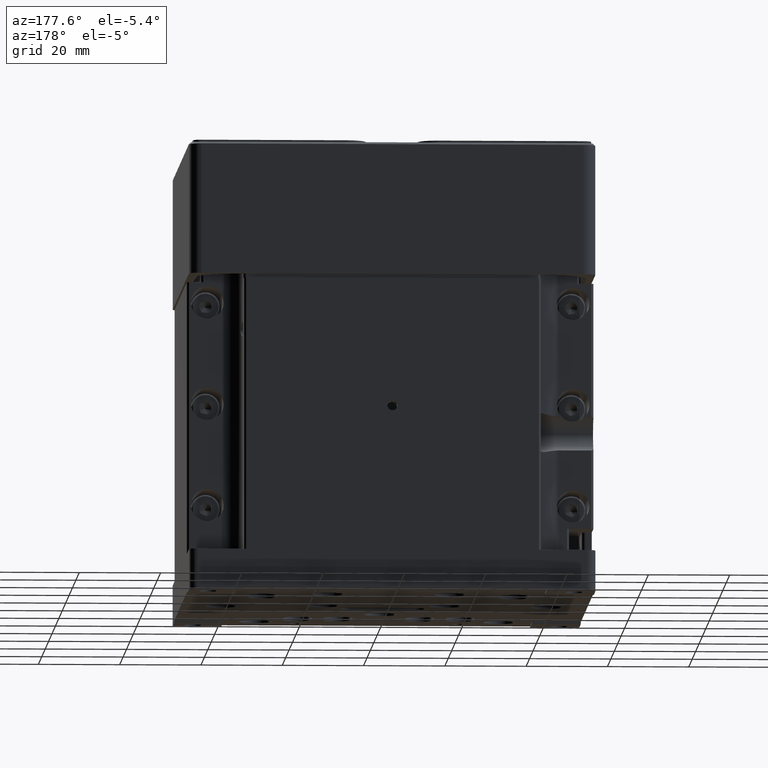
[diagram: clean part render]
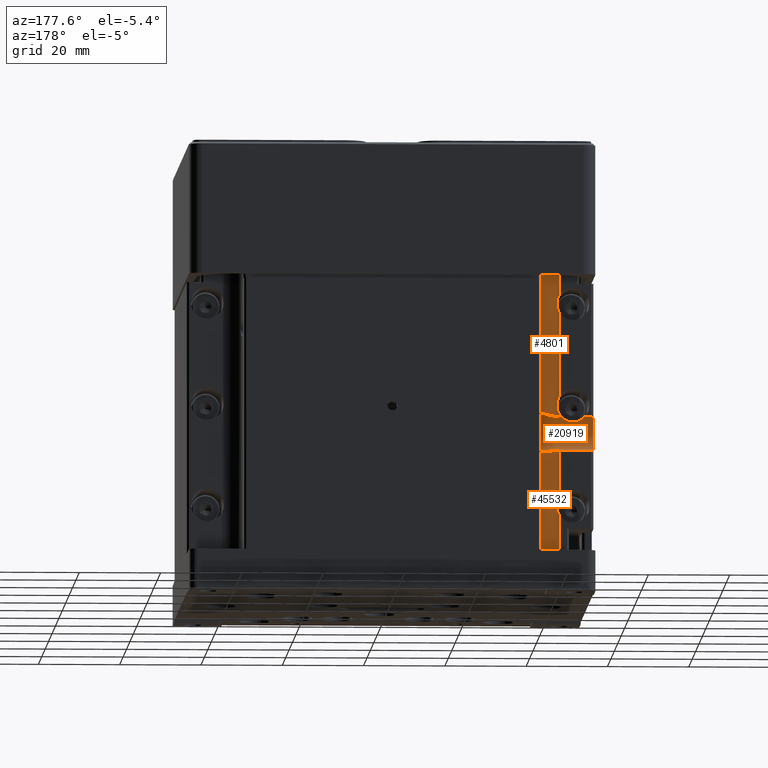
[diagram: same view with one multi-face feature highlighted, each face labeled with its STEP entity id]
A machine part, auxiliary view. The highlighted faces form ONE feature: a constant-radius fillet chain: 3 tangent blend faces with common blend radius 4.91667 mm. The faces share edges in the B-rep.
Their STEP definitions:
[1] entity #4801 (Cylinder):
#235 = ORIENTED_EDGE ( 'NONE', *, *, #21583, .F. ) ;
#711 = CARTESIAN_POINT ( 'NONE',  ( -41.50000000000000711, 36.50000000000000711, 38.93649167310373826 ) ) ;
#1902 = CARTESIAN_POINT ( 'NONE',  ( -40.67202831915937367, 36.55201173390535985, 75.78764984284978823 ) ) ;
#2355 = CARTESIAN_POINT ( 'NONE',  ( -36.62292678285738390, 40.37083705140393164, 75.52820903676904152 ) ) ;
#2496 = CARTESIAN_POINT ( 'NONE',  ( -38.44061461632058041, 37.53991129457630649, 34.59494067615605672 ) ) ;
#2549 = CARTESIAN_POINT ( 'NONE',  ( -41.50000000000000711, 36.50000000000000711, 60.06350832689626884 ) ) ;
#2952 = EDGE_CURVE ( 'NONE', #17466, #20831, #41573, .T. ) ;
#3249 = VERTEX_POINT ( 'NONE', #24686 ) ;
#4093 = B_SPLINE_CURVE_WITH_KNOTS ( 'NONE', 3,
 ( #28813, #21227, #46700, #32745, #47173, #13631, #13143, #5578, #28563, #1902, #47677, #39823 ),
 .UNSPECIFIED., .F., .F.,
 ( 4, 2, 2, 2, 2, 4 ),
 ( 0.000000000000000000, 0.001239336174084026878, 0.001859004261126032511, 0.002478672348168038143, 0.003718008522252048541, 0.004957344696336058940 ),
 .UNSPECIFIED. ) ;
#4516 = CARTESIAN_POINT ( 'NONE',  ( -41.50000000000000711, 36.50000000000000711, 38.93649167310373826 ) ) ;
#4801 = ADVANCED_FACE ( 'NONE', ( #15263 ), #26293, .F. ) ;
#4960 = EDGE_CURVE ( 'NONE', #37287, #17466, #5709, .T. ) ;
#5213 = CARTESIAN_POINT ( 'NONE',  ( -39.87698085092112166, 36.75300791791184452, 34.31127230506380954 ) ) ;
#5578 = CARTESIAN_POINT ( 'NONE',  ( -39.48770506986645046, 36.90466473817446769, 75.61823906872515977 ) ) ;
#5709 = LINE ( 'NONE', #16969, #12120 ) ;
#6007 = CARTESIAN_POINT ( 'NONE',  ( -41.50000000000000711, 36.50000000000000711, 34.18330013267034673 ) ) ;
#6835 = CARTESIAN_POINT ( 'NONE',  ( -36.62292678285738390, 40.37083705140393874, 34.47179096323093717 ) ) ;
#8227 = ORIENTED_EDGE ( 'NONE', *, *, #18385, .F. ) ;
#8779 = ORIENTED_EDGE ( 'NONE', *, *, #31743, .T. ) ;
#9420 = VECTOR ( 'NONE', #33995, 1000.000000000000000 ) ;
#9509 = CARTESIAN_POINT ( 'NONE',  ( -36.57435532177204607, 40.61049658699277387, 34.37788176978834542 ) ) ;
#9641 = CARTESIAN_POINT ( 'NONE',  ( -40.98950203047739649, 36.52615249198769476, 62.00000615618463229 ) ) ;
#9763 = CARTESIAN_POINT ( 'NONE',  ( -36.84359317990738703, 39.66064117488975427, 34.66781516531636242 ) ) ;
#9800 = VERTEX_POINT ( 'NONE', #10646 ) ;
#10625 = CARTESIAN_POINT ( 'NONE',  ( -41.05300024986247820, 36.51997521928483792, 62.67063694956938491 ) ) ;
#10646 = CARTESIAN_POINT ( 'NONE',  ( -41.50000000000000000, 36.50000000000000711, 63.93649167310372405 ) ) ;
#11000 = CARTESIAN_POINT ( 'NONE',  ( -40.98950202179891278, 36.52615248800824332, 37.00000615618349542 ) ) ;
#11094 = EDGE_CURVE ( 'NONE', #31911, #36598, #4093, .T. ) ;
#11127 = DIRECTION ( 'NONE',  ( 1.000000000000000000, 0.000000000000000000, 0.000000000000000000 ) ) ;
#11830 = CARTESIAN_POINT ( 'NONE',  ( -41.50000000000000000, 41.50000000000000000, 137.9435699807652043 ) ) ;
#11946 = CARTESIAN_POINT ( 'NONE',  ( -41.50000000000000711, 36.50000000000000711, 35.06350832689627595 ) ) ;
#12120 = VECTOR ( 'NONE', #20633, 1000.000000000000000 ) ;
#12289 = VECTOR ( 'NONE', #44359, 1000.000000000000000 ) ;
#13143 = CARTESIAN_POINT ( 'NONE',  ( -38.94896344837450641, 37.19490746024256822, 75.51058634511852574 ) ) ;
#13599 = CARTESIAN_POINT ( 'NONE',  ( -37.05549353626781794, 39.19528143679995935, 75.26507759208209336 ) ) ;
#13631 = CARTESIAN_POINT ( 'NONE',  ( -38.77554119240214447, 37.30244527297164581, 75.47425367429354992 ) ) ;
#13809 = CARTESIAN_POINT ( 'NONE',  ( -41.21152686127313558, 36.50761424987427262, 60.67308767650152390 ) ) ;
#14031 = DIRECTION ( 'NONE',  ( 0.000000000000000000, -0.000000000000000000, -1.000000000000000000 ) ) ;
#14036 = CARTESIAN_POINT ( 'NONE',  ( -41.21152968157476693, 36.50761411240627297, 63.32691743491508873 ) ) ;
#15139 = CARTESIAN_POINT ( 'NONE',  ( -41.08520046601392295, 36.51705665253342659, 36.16175727382861282 ) ) ;
#15263 = FACE_OUTER_BOUND ( 'NONE', #17199, .T. ) ;
#15745 = DIRECTION ( 'NONE',  ( -0.000000000000000000, 0.000000000000000000, 1.000000000000000000 ) ) ;
#16448 = ORIENTED_EDGE ( 'NONE', *, *, #4960, .F. ) ;
#16969 = CARTESIAN_POINT ( 'NONE',  ( -41.50000000000000711, 36.50000000000000711, 137.9435699807652043 ) ) ;
#17199 = EDGE_LOOP ( 'NONE', ( #32460, #40188, #8779, #31008, #235, #37851, #16448, #31735, #8227, #39293 ) ) ;
#17279 = CARTESIAN_POINT ( 'NONE',  ( -36.75775879399046175, 39.89625423652084635, 75.38371053861482096 ) ) ;
#17420 = CARTESIAN_POINT ( 'NONE',  ( -38.77554119240213026, 37.30244527297163870, 34.52574632570644297 ) ) ;
#17466 = VERTEX_POINT ( 'NONE', #4516 ) ;
#17961 = CARTESIAN_POINT ( 'NONE',  ( -41.08520046601392295, 36.51705665253343369, 61.16175727382860572 ) ) ;
#18385 = EDGE_CURVE ( 'NONE', #36598, #9800, #19540, .T. ) ;
#19093 = LINE ( 'NONE', #29411, #12289 ) ;
#19540 = LINE ( 'NONE', #34479, #9420 ) ;
#20135 = CARTESIAN_POINT ( 'NONE',  ( -40.67202831915938788, 36.55201173390535274, 34.21235015715019756 ) ) ;
#20633 = DIRECTION ( 'NONE',  ( 0.000000000000000000, -0.000000000000000000, -1.000000000000000000 ) ) ;
#20831 = VERTEX_POINT ( 'NONE', #35239 ) ;
#21098 = CARTESIAN_POINT ( 'NONE',  ( -38.27867324400574489, 37.67046390697057490, 34.62786517102849615 ) ) ;
#21123 = B_SPLINE_CURVE_WITH_KNOTS ( 'NONE', 3,
 ( #39501, #47593, #14036, #28227, #10625, #28949, #9641, #31922, #35835, #17961, #13809, #47818, #2549 ),
 .UNSPECIFIED., .F., .F.,
 ( 4, 2, 2, 1, 2, 2, 4 ),
 ( 0.000000000000000000, 0.001006051888025562800, 0.001509077832038346802, 0.002012103776051130805, 0.002515129720063914373, 0.003018155664076698375, 0.004024207552102266813 ),
 .UNSPECIFIED. ) ;
#21227 = CARTESIAN_POINT ( 'NONE',  ( -37.55528511130841451, 38.39906626694056513, 75.25000000000001421 ) ) ;
#21583 = EDGE_CURVE ( 'NONE', #20831, #24025, #40473, .T. ) ;
#21584 = CARTESIAN_POINT ( 'NONE',  ( -37.32417672787748586, 38.75000000000000711, 34.74999999999998579 ) ) ;
#21760 = CARTESIAN_POINT ( 'NONE',  ( -36.75775879399046175, 39.89625423652087477, 34.61628946138514351 ) ) ;
#21898 = CARTESIAN_POINT ( 'NONE',  ( -41.50000000000000711, 36.50000000000000711, 60.06350832689626884 ) ) ;
#22022 = CARTESIAN_POINT ( 'NONE',  ( -41.01049860512722489, 36.52397307306545571, 37.33532009486668102 ) ) ;
#22271 = CARTESIAN_POINT ( 'NONE',  ( -41.08520553262001584, 36.51705623715808713, 37.83826522434053174 ) ) ;
#22358 = CARTESIAN_POINT ( 'NONE',  ( -36.50000000000000711, 41.50000000000000000, 76.12701665379259452 ) ) ;
#22737 = B_SPLINE_CURVE_WITH_KNOTS ( 'NONE', 3,
 ( #36018, #28411, #39698, #21098, #2496, #17420, #32342, #42399, #5213, #20135, #27686, #35284 ),
 .UNSPECIFIED., .F., .F.,
 ( 4, 2, 2, 2, 2, 4 ),
 ( 0.003074230647270199089, 0.004317529793534599647, 0.004939179366666791686, 0.005560828939798983725, 0.006804128086063378211, 0.008047427232327772698 ),
 .UNSPECIFIED. ) ;
#22740 = CARTESIAN_POINT ( 'NONE',  ( -41.05299548330542336, 36.51997565466324858, 36.32939260183512431 ) ) ;
#24025 = VERTEX_POINT ( 'NONE', #6007 ) ;
#24686 = CARTESIAN_POINT ( 'NONE',  ( -36.50000000000000711, 41.50000000000000000, 76.12701665379259452 ) ) ;
#24718 = CARTESIAN_POINT ( 'NONE',  ( -37.05549353626781794, 39.19528143679995935, 34.73492240791792085 ) ) ;
#25925 = CARTESIAN_POINT ( 'NONE',  ( -41.21152686127313558, 36.50761424987427262, 35.67308767650153101 ) ) ;
#26164 = CARTESIAN_POINT ( 'NONE',  ( -41.33529920689155546, 36.50000000000000711, 38.63881273965618135 ) ) ;
#26252 = CARTESIAN_POINT ( 'NONE',  ( -36.51338564563180000, 41.06771641401081752, 75.84602756813650615 ) ) ;
#26293 = CYLINDRICAL_SURFACE ( 'NONE', #37102, 4.999999999999997335 ) ;
#27253 = B_SPLINE_CURVE_WITH_KNOTS ( 'NONE', 3,
 ( #22358, #29904, #26252, #35883, #2355, #17279, #32203, #13599, #28529, #47625 ),
 .UNSPECIFIED., .F., .F.,
 ( 4, 2, 2, 2, 4 ),
 ( -0.003064431645503165515, -0.002298323734127374028, -0.001532215822751582758, -0.0007661079113757914873, 0.000000000000000000 ),
 .UNSPECIFIED. ) ;
#27686 = CARTESIAN_POINT ( 'NONE',  ( -41.08006156372315587, 36.49999999999998579, 34.18330013267040357 ) ) ;
#28227 = CARTESIAN_POINT ( 'NONE',  ( -41.08520553261998742, 36.51705623715808002, 62.83826522434051043 ) ) ;
#28411 = CARTESIAN_POINT ( 'NONE',  ( -37.55528511130840030, 38.39906626694055092, 34.74999999999997158 ) ) ;
#28502 = EDGE_CURVE ( 'NONE', #3249, #44226, #19093, .T. ) ;
#28529 = CARTESIAN_POINT ( 'NONE',  ( -37.18131479530897820, 38.96693315735272023, 75.25000000000001421 ) ) ;
#28563 = CARTESIAN_POINT ( 'NONE',  ( -39.87698085092111455, 36.75300791791186583, 75.68872769493616204 ) ) ;
#28813 = CARTESIAN_POINT ( 'NONE',  ( -37.32417672787748586, 38.75000000000000711, 75.25000000000001421 ) ) ;
#28949 = CARTESIAN_POINT ( 'NONE',  ( -41.01049860512721779, 36.52397307306544860, 62.33532009486668102 ) ) ;
#29411 = CARTESIAN_POINT ( 'NONE',  ( -36.50000000000000711, 41.50000000000000000, 137.9435699807652043 ) ) ;
#29904 = CARTESIAN_POINT ( 'NONE',  ( -36.49999999999999289, 41.28831086420516527, 75.97670742924975684 ) ) ;
#30037 = CARTESIAN_POINT ( 'NONE',  ( -37.32417672787748586, 38.75000000000000711, 75.25000000000001421 ) ) ;
#31008 = ORIENTED_EDGE ( 'NONE', *, *, #46598, .T. ) ;
#31289 = VERTEX_POINT ( 'NONE', #21584 ) ;
#31735 = ORIENTED_EDGE ( 'NONE', *, *, #33922, .F. ) ;
#31743 = EDGE_CURVE ( 'NONE', #44226, #31289, #32866, .T. ) ;
#31911 = VERTEX_POINT ( 'NONE', #30037 ) ;
#31922 = CARTESIAN_POINT ( 'NONE',  ( -41.01049734262520019, 36.52397320480334031, 61.66469792115140081 ) ) ;
#31989 = CARTESIAN_POINT ( 'NONE',  ( -41.50000000000000000, 36.50000000000000711, 75.81669986732964617 ) ) ;
#32203 = CARTESIAN_POINT ( 'NONE',  ( -36.84359317990738703, 39.66064117488975427, 75.33218483468364468 ) ) ;
#32342 = CARTESIAN_POINT ( 'NONE',  ( -38.94896344837451352, 37.19490746024256111, 34.48941365488150979 ) ) ;
#32460 = ORIENTED_EDGE ( 'NONE', *, *, #41530, .F. ) ;
#32745 = CARTESIAN_POINT ( 'NONE',  ( -38.27867324400578752, 37.67046390697059621, 75.37213482897151096 ) ) ;
#32866 = B_SPLINE_CURVE_WITH_KNOTS ( 'NONE', 3,
 ( #43294, #46962, #39858, #9509, #6835, #21760, #9763, #24718, #39633, #43559 ),
 .UNSPECIFIED., .F., .F.,
 ( 4, 2, 2, 2, 4 ),
 ( 0.000000000000000000, 0.0007685576618175497723, 0.001537115323635099545, 0.002305672985452649100, 0.003074230647270199089 ),
 .UNSPECIFIED. ) ;
#33922 = EDGE_CURVE ( 'NONE', #9800, #37287, #21123, .T. ) ;
#33988 = CARTESIAN_POINT ( 'NONE',  ( -41.05300024986249241, 36.51997521928485213, 37.67063694956941333 ) ) ;
#33995 = DIRECTION ( 'NONE',  ( 0.000000000000000000, -0.000000000000000000, -1.000000000000000000 ) ) ;
#34479 = CARTESIAN_POINT ( 'NONE',  ( -41.50000000000000000, 36.50000000000000711, 137.9435699807652043 ) ) ;
#34957 = VECTOR ( 'NONE', #14031, 1000.000000000000000 ) ;
#35239 = CARTESIAN_POINT ( 'NONE',  ( -41.50000000000000711, 36.50000000000000711, 35.06350832689627595 ) ) ;
#35284 = CARTESIAN_POINT ( 'NONE',  ( -41.50000000000000711, 36.50000000000000711, 34.18330013267034673 ) ) ;
#35835 = CARTESIAN_POINT ( 'NONE',  ( -41.05299548330543047, 36.51997565466325568, 61.32939260183512431 ) ) ;
#35883 = CARTESIAN_POINT ( 'NONE',  ( -36.57435532177204607, 40.61049658699278808, 75.62211823021165458 ) ) ;
#36018 = CARTESIAN_POINT ( 'NONE',  ( -37.32417672787748586, 38.75000000000000711, 34.74999999999998579 ) ) ;
#36598 = VERTEX_POINT ( 'NONE', #31989 ) ;
#37102 = AXIS2_PLACEMENT_3D ( 'NONE', #11830, #15745, #11127 ) ;
#37193 = CARTESIAN_POINT ( 'NONE',  ( -41.21152968157478114, 36.50761411240627297, 38.32691743491510294 ) ) ;
#37287 = VERTEX_POINT ( 'NONE', #21898 ) ;
#37427 = CARTESIAN_POINT ( 'NONE',  ( -41.01049734262520730, 36.52397320480335452, 36.66469792115141502 ) ) ;
#37851 = ORIENTED_EDGE ( 'NONE', *, *, #2952, .F. ) ;
#39293 = ORIENTED_EDGE ( 'NONE', *, *, #11094, .F. ) ;
#39501 = CARTESIAN_POINT ( 'NONE',  ( -41.50000000000000000, 36.50000000000000711, 63.93649167310372405 ) ) ;
#39633 = CARTESIAN_POINT ( 'NONE',  ( -37.18131479530897820, 38.96693315735272023, 34.74999999999998579 ) ) ;
#39698 = CARTESIAN_POINT ( 'NONE',  ( -37.82326120513859280, 38.08667861736431348, 34.71196791296659967 ) ) ;
#39823 = CARTESIAN_POINT ( 'NONE',  ( -41.50000000000000000, 36.50000000000000711, 75.81669986732964617 ) ) ;
#39858 = CARTESIAN_POINT ( 'NONE',  ( -36.51338564563180000, 41.06771641401081041, 34.15397243186349385 ) ) ;
#40188 = ORIENTED_EDGE ( 'NONE', *, *, #28502, .T. ) ;
#40276 = CARTESIAN_POINT ( 'NONE',  ( -36.50000000000000711, 41.50000000000000000, 33.87298334620740548 ) ) ;
#40473 = LINE ( 'NONE', #47814, #34957 ) ;
#40849 = CARTESIAN_POINT ( 'NONE',  ( -41.33529922549250557, 36.50000000000001421, 35.36118722672461701 ) ) ;
#41530 = EDGE_CURVE ( 'NONE', #3249, #31911, #27253, .T. ) ;
#41573 = B_SPLINE_CURVE_WITH_KNOTS ( 'NONE', 3,
 ( #711, #26164, #37193, #22271, #33988, #22022, #11000, #37427, #22740, #15139, #25925, #40849, #11946 ),
 .UNSPECIFIED., .F., .F.,
 ( 4, 2, 2, 1, 2, 2, 4 ),
 ( 6.938893903907228378E-18, 0.001006051888025582099, 0.001509077832038361764, 0.002012103776051142080, 0.002515129720063921746, 0.003018155664076701411, 0.004024207552102261609 ),
 .UNSPECIFIED. ) ;
#42399 = CARTESIAN_POINT ( 'NONE',  ( -39.48770506986642914, 36.90466473817446058, 34.38176093127486865 ) ) ;
#43294 = CARTESIAN_POINT ( 'NONE',  ( -36.50000000000000711, 41.50000000000000000, 33.87298334620740548 ) ) ;
#43559 = CARTESIAN_POINT ( 'NONE',  ( -37.32417672787748586, 38.75000000000000711, 34.74999999999998579 ) ) ;
#44226 = VERTEX_POINT ( 'NONE', #40276 ) ;
#44359 = DIRECTION ( 'NONE',  ( 0.000000000000000000, 0.000000000000000000, -1.000000000000000000 ) ) ;
#46598 = EDGE_CURVE ( 'NONE', #31289, #24025, #22737, .T. ) ;
#46700 = CARTESIAN_POINT ( 'NONE',  ( -37.82326120513859280, 38.08667861736432059, 75.28803208703341454 ) ) ;
#46962 = CARTESIAN_POINT ( 'NONE',  ( -36.49999999999999289, 41.28831086420517238, 34.02329257075023605 ) ) ;
#47173 = CARTESIAN_POINT ( 'NONE',  ( -38.44061461632058041, 37.53991129457630649, 75.40505932384392906 ) ) ;
#47593 = CARTESIAN_POINT ( 'NONE',  ( -41.33529920689155546, 36.50000000000002132, 63.63881273965618846 ) ) ;
#47625 = CARTESIAN_POINT ( 'NONE',  ( -37.32417672787748586, 38.75000000000000711, 75.25000000000001421 ) ) ;
#47677 = CARTESIAN_POINT ( 'NONE',  ( -41.08006156372317719, 36.50000000000000711, 75.81669986732960353 ) ) ;
#47814 = CARTESIAN_POINT ( 'NONE',  ( -41.50000000000000711, 36.50000000000000711, 137.9435699807652043 ) ) ;
#47818 = CARTESIAN_POINT ( 'NONE',  ( -41.33529922549251268, 36.50000000000002132, 60.36118722672462411 ) ) ;
[2] entity #20919 (Cylinder):
#375 = CARTESIAN_POINT ( 'NONE',  ( -40.67202831915938788, 36.55201173390535985, 25.78764984284977757 ) ) ;
#842 = CARTESIAN_POINT ( 'NONE',  ( -42.15989404116938033, 36.50000000000000711, 34.18330013267036094 ) ) ;
#1064 = VERTEX_POINT ( 'NONE', #37253 ) ;
#1402 = B_SPLINE_CURVE_WITH_KNOTS ( 'NONE', 3,
 ( #22653, #37564, #4041, #30689, #26541, #12103, #15296, #18958, #33900, #375, #30225, #41482 ),
 .UNSPECIFIED., .F., .F.,
 ( 4, 2, 2, 2, 2, 4 ),
 ( 0.000000000000000000, 0.001239336174084019939, 0.001859004261126022319, 0.002478672348168024699, 0.003718008522252041169, 0.004957344696336058072 ),
 .UNSPECIFIED. ) ;
#2203 = CARTESIAN_POINT ( 'NONE',  ( -47.84010595883061967, 36.50000000000000711, 34.18330013267036094 ) ) ;
#2398 = CARTESIAN_POINT ( 'NONE',  ( -14.34999999999999432, 38.75000000000000711, 25.25000000000000000 ) ) ;
#2496 = CARTESIAN_POINT ( 'NONE',  ( -38.44061461632058041, 37.53991129457630649, 34.59494067615605672 ) ) ;
#3416 = EDGE_CURVE ( 'NONE', #44821, #27019, #37215, .T. ) ;
#3931 = CARTESIAN_POINT ( 'NONE',  ( -43.05856004215316801, 35.53753030059665008, 33.50036672747608435 ) ) ;
#4041 = CARTESIAN_POINT ( 'NONE',  ( -37.82326120513858569, 38.08667861736431348, 25.28803208703338612 ) ) ;
#4577 = CARTESIAN_POINT ( 'NONE',  ( -49.50000000000001421, 36.50000000000000711, 25.81669986732964261 ) ) ;
#5213 = CARTESIAN_POINT ( 'NONE',  ( -39.87698085092112166, 36.75300791791184452, 34.31127230506380954 ) ) ;
#5483 = VERTEX_POINT ( 'NONE', #27172 ) ;
#5608 = LINE ( 'NONE', #8556, #18535 ) ;
#5639 = FACE_OUTER_BOUND ( 'NONE', #46721, .T. ) ;
#5868 = CARTESIAN_POINT ( 'NONE',  ( -46.81938151439235440, 35.46828571331318614, 33.43506973195798793 ) ) ;
#6007 = CARTESIAN_POINT ( 'NONE',  ( -41.50000000000000711, 36.50000000000000711, 34.18330013267034673 ) ) ;
#7717 = ORIENTED_EDGE ( 'NONE', *, *, #34481, .F. ) ;
#8556 = CARTESIAN_POINT ( 'NONE',  ( -23.06497115745560578, 38.75000000000000711, 34.74999999999998579 ) ) ;
#8950 = CARTESIAN_POINT ( 'NONE',  ( -49.83985581056104763, 36.16014418943899500, 26.01330676103292916 ) ) ;
#9924 = CIRCLE ( 'NONE', #41188, 4.749999999999990230 ) ;
#9978 = VERTEX_POINT ( 'NONE', #18922 ) ;
#10026 = CARTESIAN_POINT ( 'NONE',  ( -47.26474722385077598, 35.77008186083643437, 33.70077476463089283 ) ) ;
#10256 = CARTESIAN_POINT ( 'NONE',  ( -46.57048341305441852, 35.35058476758797497, 33.31863357430483319 ) ) ;
#10383 = CARTESIAN_POINT ( 'NONE',  ( -49.50000000000001421, 36.50000000000000711, 34.18330013267038225 ) ) ;
#10808 = CARTESIAN_POINT ( 'NONE',  ( -42.83722536825150939, 35.68791519070572349, 33.63265266948210552 ) ) ;
#11256 = EDGE_CURVE ( 'NONE', #44821, #11606, #29177, .T. ) ;
#11606 = VERTEX_POINT ( 'NONE', #46640 ) ;
#12103 = CARTESIAN_POINT ( 'NONE',  ( -38.77554119240213026, 37.30244527297165291, 25.47425367429353571 ) ) ;
#12418 = ORIENTED_EDGE ( 'NONE', *, *, #31664, .F. ) ;
#14712 = CARTESIAN_POINT ( 'NONE',  ( -42.28834449059874601, 36.25919466518423917, 34.05378229121687639 ) ) ;
#15287 = ORIENTED_EDGE ( 'NONE', *, *, #46598, .F. ) ;
#15296 = CARTESIAN_POINT ( 'NONE',  ( -38.94896344837451352, 37.19490746024256111, 25.51058634511848666 ) ) ;
#16212 = ORIENTED_EDGE ( 'NONE', *, *, #11256, .T. ) ;
#16351 = LINE ( 'NONE', #31281, #45935 ) ;
#16398 = CYLINDRICAL_SURFACE ( 'NONE', #30243, 4.749999999999990230 ) ;
#16425 = VECTOR ( 'NONE', #36955, 1000.000000000000000 ) ;
#17355 = CARTESIAN_POINT ( 'NONE',  ( -46.44070870414029883, 35.30013814700290453, 33.26572786226159195 ) ) ;
#17420 = CARTESIAN_POINT ( 'NONE',  ( -38.77554119240213026, 37.30244527297163870, 34.52574632570644297 ) ) ;
#17425 = CARTESIAN_POINT ( 'NONE',  ( -23.06497115745560578, 38.75000000000000711, 25.25000000000000000 ) ) ;
#18535 = VECTOR ( 'NONE', #23498, 1000.000000000000000 ) ;
#18838 = DIRECTION ( 'NONE',  ( -1.000000000000000000, -0.000000000000000000, -0.000000000000000000 ) ) ;
#18922 = CARTESIAN_POINT ( 'NONE',  ( -14.34999999999999432, 38.75000000000000711, 34.74999999999998579 ) ) ;
#18937 = CARTESIAN_POINT ( 'NONE',  ( -41.50000000000000000, 36.50000000000000711, 25.81669986732963551 ) ) ;
#18958 = CARTESIAN_POINT ( 'NONE',  ( -39.48770506986645046, 36.90466473817446769, 25.61823906872511714 ) ) ;
#18961 = CARTESIAN_POINT ( 'NONE',  ( -23.06497115745560578, 36.50000000000000711, 34.18330013267036094 ) ) ;
#19449 = DIRECTION ( 'NONE',  ( -1.000000000000000000, -0.000000000000000000, -0.000000000000000000 ) ) ;
#19455 = EDGE_CURVE ( 'NONE', #41843, #27019, #32579, .T. ) ;
#19482 = CARTESIAN_POINT ( 'NONE',  ( -49.67297549435181736, 36.32702450564822527, 25.90973523413298452 ) ) ;
#20135 = CARTESIAN_POINT ( 'NONE',  ( -40.67202831915938788, 36.55201173390535274, 34.21235015715019756 ) ) ;
#20497 = VERTEX_POINT ( 'NONE', #842 ) ;
#20804 = CARTESIAN_POINT ( 'NONE',  ( -47.55099974831536258, 36.04312032853530923, 33.90997267801085968 ) ) ;
#20919 = ADVANCED_FACE ( 'NONE', ( #5639 ), #16398, .F. ) ;
#21042 = CARTESIAN_POINT ( 'NONE',  ( -47.16174840600159968, 35.68709648267788737, 33.63197170390315449 ) ) ;
#21098 = CARTESIAN_POINT ( 'NONE',  ( -38.27867324400574489, 37.67046390697057490, 34.62786517102849615 ) ) ;
#21523 = CARTESIAN_POINT ( 'NONE',  ( -46.17049833900497902, 35.21414473799775635, 33.17242065957325536 ) ) ;
#21584 = CARTESIAN_POINT ( 'NONE',  ( -37.32417672787748586, 38.75000000000000711, 34.74999999999998579 ) ) ;
#22114 = CARTESIAN_POINT ( 'NONE',  ( -49.50000000000001421, 36.50000000000000711, 25.81669986732964261 ) ) ;
#22201 = DIRECTION ( 'NONE',  ( -1.000000000000000000, -0.000000000000000000, -0.000000000000000000 ) ) ;
#22456 = DIRECTION ( 'NONE',  ( 0.000000000000000000, 0.000000000000000000, 1.000000000000000000 ) ) ;
#22465 = CARTESIAN_POINT ( 'NONE',  ( -50.00000000000000000, 36.00000000000002842, 26.12701665379258742 ) ) ;
#22653 = CARTESIAN_POINT ( 'NONE',  ( -37.32417672787748586, 38.75000000000000711, 25.25000000000000000 ) ) ;
#22737 = B_SPLINE_CURVE_WITH_KNOTS ( 'NONE', 3,
 ( #36018, #28411, #39698, #21098, #2496, #17420, #32342, #42399, #5213, #20135, #27686, #35284 ),
 .UNSPECIFIED., .F., .F.,
 ( 4, 2, 2, 2, 2, 4 ),
 ( 0.003074230647270199089, 0.004317529793534599647, 0.004939179366666791686, 0.005560828939798983725, 0.006804128086063378211, 0.008047427232327772698 ),
 .UNSPECIFIED. ) ;
#22745 = DIRECTION ( 'NONE',  ( -1.000000000000000000, -0.000000000000000000, -0.000000000000000000 ) ) ;
#22773 = CARTESIAN_POINT ( 'NONE',  ( -43.96732326347746778, 35.17931841519892799, 33.13282368896382479 ) ) ;
#23415 = B_SPLINE_CURVE_WITH_KNOTS ( 'NONE', 3,
 ( #43303, #43566, #36190, #32040, #21523, #17355, #10256, #5868, #44281, #21042, #10026, #20804, #47217, #2203 ),
 .UNSPECIFIED., .F., .F.,
 ( 4, 2, 2, 2, 2, 2, 4 ),
 ( 0.000000000000000000, 0.0008941594869027230576, 0.001341239230354082526, 0.001788318973805441778, 0.002235398717256801247, 0.002682478460708160716, 0.003576637947610889195 ),
 .UNSPECIFIED. ) ;
#23498 = DIRECTION ( 'NONE',  ( -1.000000000000000000, -0.000000000000000000, -0.000000000000000000 ) ) ;
#23770 = CARTESIAN_POINT ( 'NONE',  ( -23.06497115745560578, 38.75000000000000711, 29.99999999999999289 ) ) ;
#24025 = VERTEX_POINT ( 'NONE', #6007 ) ;
#25018 = LINE ( 'NONE', #17425, #31005 ) ;
#25723 = CARTESIAN_POINT ( 'NONE',  ( -44.69774028565722546, 35.06727003433598355, 33.00000000000001421 ) ) ;
#26541 = CARTESIAN_POINT ( 'NONE',  ( -38.44061461632057330, 37.53991129457630649, 25.40505932384391841 ) ) ;
#27019 = VERTEX_POINT ( 'NONE', #22114 ) ;
#27172 = CARTESIAN_POINT ( 'NONE',  ( -37.32417672787748586, 38.75000000000000711, 25.25000000000000000 ) ) ;
#27686 = CARTESIAN_POINT ( 'NONE',  ( -41.08006156372315587, 36.49999999999998579, 34.18330013267040357 ) ) ;
#28411 = CARTESIAN_POINT ( 'NONE',  ( -37.55528511130840030, 38.39906626694055092, 34.74999999999997158 ) ) ;
#29177 = CIRCLE ( 'NONE', #38534, 4.749999999999990230 ) ;
#29624 = CARTESIAN_POINT ( 'NONE',  ( -43.42425675964664578, 35.35278389521055686, 33.32088930252855619 ) ) ;
#29688 = ORIENTED_EDGE ( 'NONE', *, *, #39004, .F. ) ;
#29997 = VECTOR ( 'NONE', #19449, 1000.000000000000000 ) ;
#30099 = CARTESIAN_POINT ( 'NONE',  ( -43.55651248902064054, 35.30112138979848879, 33.26677451891399073 ) ) ;
#30225 = CARTESIAN_POINT ( 'NONE',  ( -41.08006156372317719, 36.50000000000000711, 25.81669986732958932 ) ) ;
#30243 = AXIS2_PLACEMENT_3D ( 'NONE', #23770, #46252, #46013 ) ;
#30371 = B_SPLINE_CURVE_WITH_KNOTS ( 'NONE', 3,
 ( #37457, #14712, #33069, #34020, #10808, #3931, #48007, #29624, #30099, #37227, #22773, #44562, #25723, #40634 ),
 .UNSPECIFIED., .F., .F.,
 ( 4, 2, 2, 2, 2, 2, 4 ),
 ( -0.003577008261157105934, -0.002682756195867829884, -0.002235630163223191642, -0.001788504130578553401, -0.001341378097933915159, -0.0008942520652892769172, 0.000000000000000000 ),
 .UNSPECIFIED. ) ;
#30632 = EDGE_CURVE ( 'NONE', #5483, #41843, #1402, .T. ) ;
#30689 = CARTESIAN_POINT ( 'NONE',  ( -38.27867324400577331, 37.67046390697059621, 25.37213482897146477 ) ) ;
#31005 = VECTOR ( 'NONE', #40427, 1000.000000000000000 ) ;
#31281 = CARTESIAN_POINT ( 'NONE',  ( -23.06497115745560578, 36.50000000000000000, 34.18330013267035383 ) ) ;
#31289 = VERTEX_POINT ( 'NONE', #21584 ) ;
#31391 = EDGE_CURVE ( 'NONE', #42395, #9978, #9924, .T. ) ;
#31664 = EDGE_CURVE ( 'NONE', #9978, #31289, #5608, .T. ) ;
#31920 = ORIENTED_EDGE ( 'NONE', *, *, #32938, .F. ) ;
#32040 = CARTESIAN_POINT ( 'NONE',  ( -46.02884776223865515, 35.17838960272101190, 33.13176537039642255 ) ) ;
#32342 = CARTESIAN_POINT ( 'NONE',  ( -38.94896344837451352, 37.19490746024256111, 34.48941365488150979 ) ) ;
#32348 = CARTESIAN_POINT ( 'NONE',  ( -49.67297549435179604, 36.32702450564823948, 34.09026476586701193 ) ) ;
#32579 = LINE ( 'NONE', #44067, #16425 ) ;
#32938 = EDGE_CURVE ( 'NONE', #44135, #1064, #23415, .T. ) ;
#33069 = CARTESIAN_POINT ( 'NONE',  ( -42.44483718131623107, 36.04780299342566252, 33.91331655603451622 ) ) ;
#33787 = CARTESIAN_POINT ( 'NONE',  ( -49.83985581056103342, 36.16014418943900210, 33.98669323896707084 ) ) ;
#33900 = CARTESIAN_POINT ( 'NONE',  ( -39.87698085092112876, 36.75300791791185873, 25.68872769493616204 ) ) ;
#34020 = CARTESIAN_POINT ( 'NONE',  ( -42.73241699797072357, 35.77243988980816880, 33.70270030824971030 ) ) ;
#34315 = CARTESIAN_POINT ( 'NONE',  ( -50.00000000000000000, 36.00000000000002842, 26.12701665379258742 ) ) ;
#34481 = EDGE_CURVE ( 'NONE', #20497, #44135, #30371, .T. ) ;
#34950 = ORIENTED_EDGE ( 'NONE', *, *, #30632, .T. ) ;
#35145 = ORIENTED_EDGE ( 'NONE', *, *, #35747, .T. ) ;
#35284 = CARTESIAN_POINT ( 'NONE',  ( -41.50000000000000711, 36.50000000000000711, 34.18330013267034673 ) ) ;
#35747 = EDGE_CURVE ( 'NONE', #42395, #5483, #25018, .T. ) ;
#35801 = EDGE_CURVE ( 'NONE', #47573, #11606, #40917, .T. ) ;
#36018 = CARTESIAN_POINT ( 'NONE',  ( -37.32417672787748586, 38.75000000000000711, 34.74999999999998579 ) ) ;
#36023 = CARTESIAN_POINT ( 'NONE',  ( -49.50000000000001421, 36.50000000000000711, 34.18330013267038225 ) ) ;
#36190 = CARTESIAN_POINT ( 'NONE',  ( -45.59720809259442120, 35.09408371234138713, 33.03384191386032143 ) ) ;
#36955 = DIRECTION ( 'NONE',  ( -1.000000000000000000, -0.000000000000000000, -0.000000000000000000 ) ) ;
#37215 =( BOUNDED_CURVE ( )  B_SPLINE_CURVE ( 3, ( #22465, #8950, #19482, #4577 ),
 .UNSPECIFIED., .F., .F. ) 
 B_SPLINE_CURVE_WITH_KNOTS ( ( 4, 4 ),
 ( 0.9533592231795424699, 1.077326932161572381 ),
 .UNSPECIFIED. ) 
 CURVE ( )  GEOMETRIC_REPRESENTATION_ITEM ( )  RATIONAL_B_SPLINE_CURVE ( ( 1.000000000000000000, 0.9987197439013690836, 0.9987197439013690836, 1.000000000000000000 ) ) 
 REPRESENTATION_ITEM ( '' )  );
#37227 = CARTESIAN_POINT ( 'NONE',  ( -43.82798044899217871, 35.21453151346054966, 33.17286022478423035 ) ) ;
#37253 = CARTESIAN_POINT ( 'NONE',  ( -47.84010595883061967, 36.50000000000000711, 34.18330013267036094 ) ) ;
#37345 = LINE ( 'NONE', #18961, #29997 ) ;
#37457 = CARTESIAN_POINT ( 'NONE',  ( -42.15989404116938033, 36.50000000000000711, 34.18330013267036094 ) ) ;
#37466 = CARTESIAN_POINT ( 'NONE',  ( -50.00000000000000000, 36.00000000000002132, 33.87298334620742679 ) ) ;
#37564 = CARTESIAN_POINT ( 'NONE',  ( -37.55528511130843583, 38.39906626694056513, 25.25000000000000711 ) ) ;
#38534 = AXIS2_PLACEMENT_3D ( 'NONE', #44707, #22201, #22456 ) ;
#38698 = ORIENTED_EDGE ( 'NONE', *, *, #35801, .F. ) ;
#39004 = EDGE_CURVE ( 'NONE', #1064, #47573, #37345, .T. ) ;
#39489 = ORIENTED_EDGE ( 'NONE', *, *, #31391, .F. ) ;
#39698 = CARTESIAN_POINT ( 'NONE',  ( -37.82326120513859280, 38.08667861736431348, 34.71196791296659967 ) ) ;
#39712 = ORIENTED_EDGE ( 'NONE', *, *, #3416, .F. ) ;
#40427 = DIRECTION ( 'NONE',  ( -1.000000000000000000, -0.000000000000000000, -0.000000000000000000 ) ) ;
#40507 = ORIENTED_EDGE ( 'NONE', *, *, #42255, .F. ) ;
#40633 = DIRECTION ( 'NONE',  ( 0.000000000000000000, 0.000000000000000000, 1.000000000000000000 ) ) ;
#40634 = CARTESIAN_POINT ( 'NONE',  ( -45.00000000000000000, 35.06727003433596934, 33.00000000000000000 ) ) ;
#40878 = CARTESIAN_POINT ( 'NONE',  ( -14.34999999999999432, 38.75000000000000711, 29.99999999999999289 ) ) ;
#40917 =( BOUNDED_CURVE ( )  B_SPLINE_CURVE ( 3, ( #36023, #32348, #33787, #37466 ),
 .UNSPECIFIED., .F., .T. ) 
 B_SPLINE_CURVE_WITH_KNOTS ( ( 4, 4 ),
 ( 5.205858375018009632, 5.329826084000040431 ),
 .UNSPECIFIED. ) 
 CURVE ( )  GEOMETRIC_REPRESENTATION_ITEM ( )  RATIONAL_B_SPLINE_CURVE ( ( 1.000000000000000000, 0.9987197439013689726, 0.9987197439013689726, 1.000000000000000000 ) ) 
 REPRESENTATION_ITEM ( '' )  );
#41188 = AXIS2_PLACEMENT_3D ( 'NONE', #40878, #18838, #40633 ) ;
#41482 = CARTESIAN_POINT ( 'NONE',  ( -41.50000000000000000, 36.50000000000000711, 25.81669986732963551 ) ) ;
#41521 = ORIENTED_EDGE ( 'NONE', *, *, #19455, .T. ) ;
#41843 = VERTEX_POINT ( 'NONE', #18937 ) ;
#42255 = EDGE_CURVE ( 'NONE', #24025, #20497, #16351, .T. ) ;
#42395 = VERTEX_POINT ( 'NONE', #2398 ) ;
#42399 = CARTESIAN_POINT ( 'NONE',  ( -39.48770506986642914, 36.90466473817446058, 34.38176093127486865 ) ) ;
#43303 = CARTESIAN_POINT ( 'NONE',  ( -45.00000000000000000, 35.06727003433596934, 33.00000000000000000 ) ) ;
#43566 = CARTESIAN_POINT ( 'NONE',  ( -45.30222842258763194, 35.06727003433597645, 33.00000000000000711 ) ) ;
#44067 = CARTESIAN_POINT ( 'NONE',  ( -50.00000000000000000, 36.50000000000000711, 25.81669986732963551 ) ) ;
#44135 = VERTEX_POINT ( 'NONE', #48116 ) ;
#44281 = CARTESIAN_POINT ( 'NONE',  ( -46.93936648629967578, 35.53624463786787402, 33.49919603434051396 ) ) ;
#44562 = CARTESIAN_POINT ( 'NONE',  ( -44.39592688044971425, 35.09507168903871843, 33.03502949350014717 ) ) ;
#44707 = CARTESIAN_POINT ( 'NONE',  ( -50.00000000000000000, 38.75000000000000711, 29.99999999999999289 ) ) ;
#44821 = VERTEX_POINT ( 'NONE', #34315 ) ;
#45935 = VECTOR ( 'NONE', #22745, 1000.000000000000000 ) ;
#46013 = DIRECTION ( 'NONE',  ( 0.000000000000000000, 0.000000000000000000, 1.000000000000000000 ) ) ;
#46252 = DIRECTION ( 'NONE',  ( -1.000000000000000000, -0.000000000000000000, -0.000000000000000000 ) ) ;
#46598 = EDGE_CURVE ( 'NONE', #31289, #24025, #22737, .T. ) ;
#46640 = CARTESIAN_POINT ( 'NONE',  ( -50.00000000000000000, 36.00000000000002132, 33.87298334620742679 ) ) ;
#46721 = EDGE_LOOP ( 'NONE', ( #39489, #35145, #34950, #41521, #39712, #16212, #38698, #29688, #31920, #7717, #40507, #15287, #12418 ) ) ;
#47217 = CARTESIAN_POINT ( 'NONE',  ( -47.71161035132990236, 36.25911000760196146, 34.05373675789292776 ) ) ;
#47573 = VERTEX_POINT ( 'NONE', #10383 ) ;
#48007 = CARTESIAN_POINT ( 'NONE',  ( -43.17587977355221796, 35.47082660488460704, 33.43749979884461965 ) ) ;
#48116 = CARTESIAN_POINT ( 'NONE',  ( -45.00000000000000000, 35.06727003433596934, 33.00000000000000000 ) ) ;
[3] entity #45532 (Cylinder):
#375 = CARTESIAN_POINT ( 'NONE',  ( -40.67202831915938788, 36.55201173390535985, 25.78764984284977757 ) ) ;
#1122 = FACE_OUTER_BOUND ( 'NONE', #11197, .T. ) ;
#1301 = CARTESIAN_POINT ( 'NONE',  ( -41.01049734262520019, 36.52397320480334741, 11.66469792115140613 ) ) ;
#1402 = B_SPLINE_CURVE_WITH_KNOTS ( 'NONE', 3,
 ( #22653, #37564, #4041, #30689, #26541, #12103, #15296, #18958, #33900, #375, #30225, #41482 ),
 .UNSPECIFIED., .F., .F.,
 ( 4, 2, 2, 2, 2, 4 ),
 ( 0.000000000000000000, 0.001239336174084019939, 0.001859004261126022319, 0.002478672348168024699, 0.003718008522252041169, 0.004957344696336058072 ),
 .UNSPECIFIED. ) ;
#1695 = CARTESIAN_POINT ( 'NONE',  ( -41.50000000000000711, 36.50000000000000711, 0.000000000000000000 ) ) ;
#1762 = CARTESIAN_POINT ( 'NONE',  ( -41.21152968157477403, 36.50761411240627297, 13.32691743491509762 ) ) ;
#1854 = CARTESIAN_POINT ( 'NONE',  ( -41.50000000000000711, 36.50000000000000711, 10.06350832689626174 ) ) ;
#2461 = DIRECTION ( 'NONE',  ( -0.000000000000000000, 0.000000000000000000, 1.000000000000000000 ) ) ;
#2688 = CARTESIAN_POINT ( 'NONE',  ( -36.49999999999999289, 41.28831086420516527, 25.97670742924973553 ) ) ;
#4041 = CARTESIAN_POINT ( 'NONE',  ( -37.82326120513858569, 38.08667861736431348, 25.28803208703338612 ) ) ;
#4958 = CARTESIAN_POINT ( 'NONE',  ( -41.01049860512720358, 36.52397307306544860, 12.33532009486668635 ) ) ;
#5483 = VERTEX_POINT ( 'NONE', #27172 ) ;
#6856 = CARTESIAN_POINT ( 'NONE',  ( -37.32417672787748586, 38.75000000000000711, 25.25000000000000000 ) ) ;
#7090 = CARTESIAN_POINT ( 'NONE',  ( -37.05549353626781794, 39.19528143679995935, 25.26507759208205783 ) ) ;
#7797 = LINE ( 'NONE', #18324, #16857 ) ;
#9421 = CARTESIAN_POINT ( 'NONE',  ( -41.50000000000000000, 36.50000000000000711, 13.93649167310373116 ) ) ;
#10038 = CARTESIAN_POINT ( 'NONE',  ( -36.75775879399047597, 39.89625423652084635, 25.38371053861482807 ) ) ;
#10066 = LINE ( 'NONE', #25001, #21871 ) ;
#11197 = EDGE_LOOP ( 'NONE', ( #25174, #32888, #29009, #21076, #12974, #24395, #24841 ) ) ;
#11698 = DIRECTION ( 'NONE',  ( 0.000000000000000000, -0.000000000000000000, -1.000000000000000000 ) ) ;
#12103 = CARTESIAN_POINT ( 'NONE',  ( -38.77554119240213026, 37.30244527297165291, 25.47425367429353571 ) ) ;
#12329 = DIRECTION ( 'NONE',  ( 1.000000000000000000, 0.000000000000000000, 0.000000000000000000 ) ) ;
#12974 = ORIENTED_EDGE ( 'NONE', *, *, #32376, .F. ) ;
#15296 = CARTESIAN_POINT ( 'NONE',  ( -38.94896344837451352, 37.19490746024256111, 25.51058634511848666 ) ) ;
#15803 = EDGE_CURVE ( 'NONE', #25321, #5483, #37163, .T. ) ;
#16052 = CYLINDRICAL_SURFACE ( 'NONE', #30469, 4.999999999999997335 ) ;
#16222 = CARTESIAN_POINT ( 'NONE',  ( -41.50000000000000000, 36.50000000000000711, 13.93649167310373116 ) ) ;
#16857 = VECTOR ( 'NONE', #11698, 1000.000000000000000 ) ;
#17091 = EDGE_CURVE ( 'NONE', #41843, #37213, #30065, .T. ) ;
#17369 = CARTESIAN_POINT ( 'NONE',  ( -36.62292678285737679, 40.37083705140393164, 25.52820903676904507 ) ) ;
#18324 = CARTESIAN_POINT ( 'NONE',  ( -41.50000000000000711, 36.50000000000000711, 137.9435699807652043 ) ) ;
#18937 = CARTESIAN_POINT ( 'NONE',  ( -41.50000000000000000, 36.50000000000000711, 25.81669986732963551 ) ) ;
#18958 = CARTESIAN_POINT ( 'NONE',  ( -39.48770506986645046, 36.90466473817446769, 25.61823906872511714 ) ) ;
#18997 = DIRECTION ( 'NONE',  ( 1.000000000000000000, 0.000000000000000000, 0.000000000000000000 ) ) ;
#20137 = CARTESIAN_POINT ( 'NONE',  ( -40.98950203047739649, 36.52615249198770186, 12.00000615618461275 ) ) ;
#20869 = CARTESIAN_POINT ( 'NONE',  ( -41.05300024986247820, 36.51997521928484502, 12.67063694956940623 ) ) ;
#21076 = ORIENTED_EDGE ( 'NONE', *, *, #33089, .F. ) ;
#21688 = AXIS2_PLACEMENT_3D ( 'NONE', #31844, #2461, #12329 ) ;
#21871 = VECTOR ( 'NONE', #32585, 1000.000000000000000 ) ;
#22463 = CARTESIAN_POINT ( 'NONE',  ( -41.50000000000000000, 41.50000000000000000, 137.9435699807652043 ) ) ;
#22653 = CARTESIAN_POINT ( 'NONE',  ( -37.32417672787748586, 38.75000000000000711, 25.25000000000000000 ) ) ;
#22732 = VECTOR ( 'NONE', #30316, 1000.000000000000000 ) ;
#24395 = ORIENTED_EDGE ( 'NONE', *, *, #17091, .F. ) ;
#24742 = CARTESIAN_POINT ( 'NONE',  ( -36.57435532177204607, 40.61049658699278808, 25.62211823021162971 ) ) ;
#24841 = ORIENTED_EDGE ( 'NONE', *, *, #30632, .F. ) ;
#25001 = CARTESIAN_POINT ( 'NONE',  ( -36.50000000000000711, 41.50000000000000000, 137.9435699807652043 ) ) ;
#25174 = ORIENTED_EDGE ( 'NONE', *, *, #15803, .F. ) ;
#25321 = VERTEX_POINT ( 'NONE', #40595 ) ;
#26541 = CARTESIAN_POINT ( 'NONE',  ( -38.44061461632057330, 37.53991129457630649, 25.40505932384391841 ) ) ;
#27172 = CARTESIAN_POINT ( 'NONE',  ( -37.32417672787748586, 38.75000000000000711, 25.25000000000000000 ) ) ;
#27442 = CARTESIAN_POINT ( 'NONE',  ( -41.33529922549251268, 36.50000000000001421, 10.36118722672458681 ) ) ;
#27688 = CARTESIAN_POINT ( 'NONE',  ( -41.05299548330543047, 36.51997565466325568, 11.32939260183512253 ) ) ;
#28128 = VERTEX_POINT ( 'NONE', #37761 ) ;
#28151 = B_SPLINE_CURVE_WITH_KNOTS ( 'NONE', 3,
 ( #16222, #31142, #1762, #31617, #20869, #4958, #20137, #1301, #27688, #34818, #39199, #27442, #42652 ),
 .UNSPECIFIED., .F., .F.,
 ( 4, 2, 2, 1, 2, 2, 4 ),
 ( 1.734723475976807094E-18, 0.001006051888025569089, 0.001509077832038355259, 0.002012103776051141647, 0.002515129720063927817, 0.003018155664076714421, 0.004024207552102281558 ),
 .UNSPECIFIED. ) ;
#29009 = ORIENTED_EDGE ( 'NONE', *, *, #41915, .F. ) ;
#30065 = LINE ( 'NONE', #45012, #22732 ) ;
#30225 = CARTESIAN_POINT ( 'NONE',  ( -41.08006156372317719, 36.50000000000000711, 25.81669986732958932 ) ) ;
#30316 = DIRECTION ( 'NONE',  ( 0.000000000000000000, -0.000000000000000000, -1.000000000000000000 ) ) ;
#30469 = AXIS2_PLACEMENT_3D ( 'NONE', #22463, #37373, #18997 ) ;
#30632 = EDGE_CURVE ( 'NONE', #5483, #41843, #1402, .T. ) ;
#30689 = CARTESIAN_POINT ( 'NONE',  ( -38.27867324400577331, 37.67046390697059621, 25.37213482897146477 ) ) ;
#31142 = CARTESIAN_POINT ( 'NONE',  ( -41.33529920689154835, 36.50000000000000711, 13.63881273965618313 ) ) ;
#31617 = CARTESIAN_POINT ( 'NONE',  ( -41.08520553262000163, 36.51705623715808002, 12.83826522434051931 ) ) ;
#31844 = CARTESIAN_POINT ( 'NONE',  ( -41.50000000000000000, 41.50000000000000000, 0.000000000000000000 ) ) ;
#32290 = CARTESIAN_POINT ( 'NONE',  ( -36.84359317990738703, 39.66064117488975427, 25.33218483468362692 ) ) ;
#32376 = EDGE_CURVE ( 'NONE', #37213, #45656, #28151, .T. ) ;
#32585 = DIRECTION ( 'NONE',  ( 0.000000000000000000, 0.000000000000000000, -1.000000000000000000 ) ) ;
#32798 = CARTESIAN_POINT ( 'NONE',  ( -36.50000000000000711, 41.50000000000000000, 26.12701665379258387 ) ) ;
#32888 = ORIENTED_EDGE ( 'NONE', *, *, #45173, .T. ) ;
#33089 = EDGE_CURVE ( 'NONE', #45656, #34596, #7797, .T. ) ;
#33900 = CARTESIAN_POINT ( 'NONE',  ( -39.87698085092112876, 36.75300791791185873, 25.68872769493616204 ) ) ;
#34596 = VERTEX_POINT ( 'NONE', #1695 ) ;
#34818 = CARTESIAN_POINT ( 'NONE',  ( -41.08520046601392295, 36.51705665253342659, 11.16175727382861282 ) ) ;
#37163 = B_SPLINE_CURVE_WITH_KNOTS ( 'NONE', 3,
 ( #32798, #2688, #43811, #24742, #17369, #10038, #32290, #7090, #40371, #6856 ),
 .UNSPECIFIED., .F., .F.,
 ( 4, 2, 2, 2, 4 ),
 ( -0.003064431645503162913, -0.002298323734127372293, -0.001532215822751581457, -0.0007661079113757906199, 0.000000000000000000 ),
 .UNSPECIFIED. ) ;
#37213 = VERTEX_POINT ( 'NONE', #9421 ) ;
#37373 = DIRECTION ( 'NONE',  ( -0.000000000000000000, 0.000000000000000000, 1.000000000000000000 ) ) ;
#37564 = CARTESIAN_POINT ( 'NONE',  ( -37.55528511130843583, 38.39906626694056513, 25.25000000000000711 ) ) ;
#37761 = CARTESIAN_POINT ( 'NONE',  ( -36.50000000000000711, 41.50000000000000000, 0.000000000000000000 ) ) ;
#39199 = CARTESIAN_POINT ( 'NONE',  ( -41.21152686127311426, 36.50761424987426551, 10.67308767650153101 ) ) ;
#40371 = CARTESIAN_POINT ( 'NONE',  ( -37.18131479530897820, 38.96693315735272023, 25.25000000000000355 ) ) ;
#40595 = CARTESIAN_POINT ( 'NONE',  ( -36.50000000000000711, 41.50000000000000000, 26.12701665379258387 ) ) ;
#41482 = CARTESIAN_POINT ( 'NONE',  ( -41.50000000000000000, 36.50000000000000711, 25.81669986732963551 ) ) ;
#41843 = VERTEX_POINT ( 'NONE', #18937 ) ;
#41915 = EDGE_CURVE ( 'NONE', #34596, #28128, #42782, .T. ) ;
#42652 = CARTESIAN_POINT ( 'NONE',  ( -41.50000000000000711, 36.50000000000000711, 10.06350832689626174 ) ) ;
#42782 = CIRCLE ( 'NONE', #21688, 4.999999999999997335 ) ;
#43811 = CARTESIAN_POINT ( 'NONE',  ( -36.51338564563180000, 41.06771641401081752, 25.84602756813650615 ) ) ;
#45012 = CARTESIAN_POINT ( 'NONE',  ( -41.50000000000000000, 36.50000000000000711, 137.9435699807652043 ) ) ;
#45173 = EDGE_CURVE ( 'NONE', #25321, #28128, #10066, .T. ) ;
#45532 = ADVANCED_FACE ( 'NONE', ( #1122 ), #16052, .F. ) ;
#45656 = VERTEX_POINT ( 'NONE', #1854 ) ;